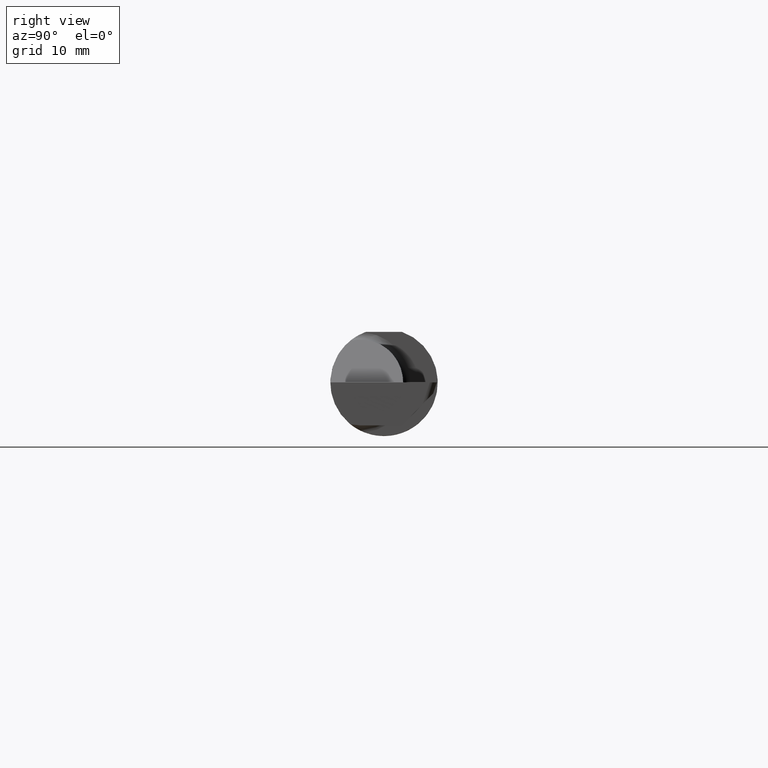
[diagram: clean part render]
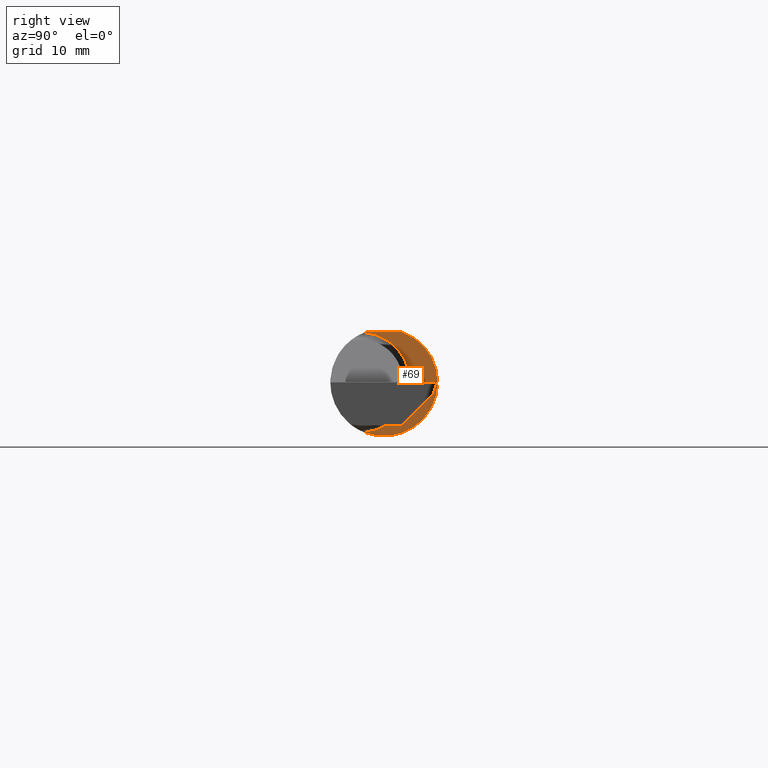
[diagram: same view with one face highlighted and labeled with its STEP entity id]
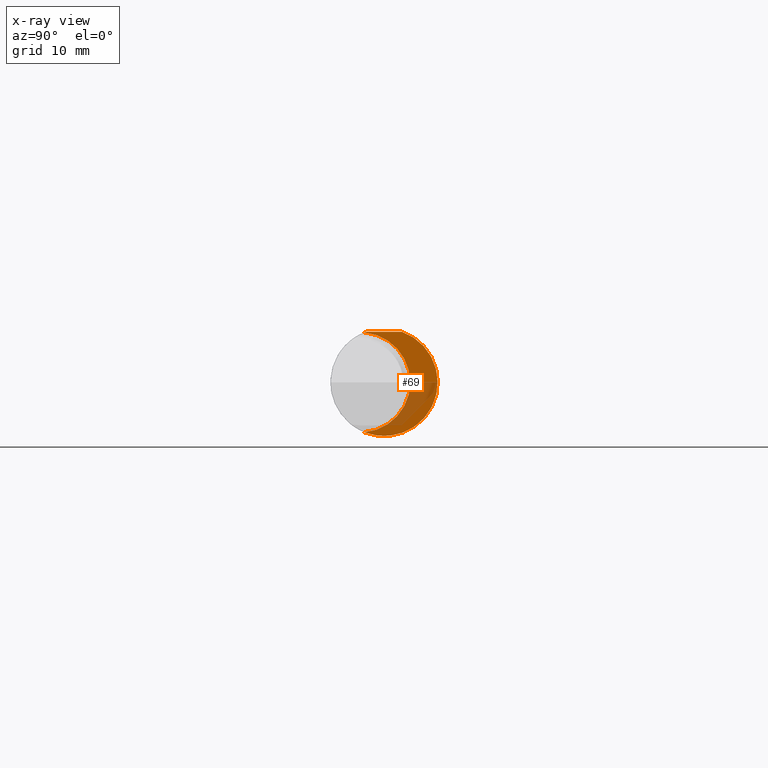
[diagram: x-ray of the same camera — body ghosted, the highlighted face saturated]
A machine part, right view. The second image highlights one B-rep face of the part: STEP entity #69.
The next image is the same camera in x-ray: the body ghosted, the highlighted face saturated — about 28% of this face is hidden behind the body in this view.
In plain terms, the highlighted planar face has unit normal (1, 0, 0).
Its self-contained STEP definition (entity closure, byte-faithful):
#4 = DIRECTION ( 'NONE',  ( 0.000000000000000000, 1.000000000000000000, 0.000000000000000000 ) ) ;
#13 = PLANE ( 'NONE',  #49 ) ;
#15 = CIRCLE ( 'NONE', #602, 0.1873499999999999888 ) ;
#27 = CARTESIAN_POINT ( 'NONE',  ( 1.450000000000000178, 0.000000000000000000, 0.000000000000000000 ) ) ;
#47 = VERTEX_POINT ( 'NONE', #463 ) ;
#49 = AXIS2_PLACEMENT_3D ( 'NONE', #229, #224, #665 ) ;
#69 = ADVANCED_FACE ( 'NONE', ( #686 ), #13, .T. ) ;
#121 = AXIS2_PLACEMENT_3D ( 'NONE', #27, #454, #673 ) ;
#187 = CARTESIAN_POINT ( 'NONE',  ( 1.450000000000000178, -0.08335000000000004905, 0.000000000000000000 ) ) ;
#206 = CARTESIAN_POINT ( 'NONE',  ( 1.450000000000000178, 0.000000000000000000, 0.000000000000000000 ) ) ;
#224 = DIRECTION ( 'NONE',  ( 1.000000000000000000, 5.107097978105302334E-17, 0.000000000000000000 ) ) ;
#229 = CARTESIAN_POINT ( 'NONE',  ( 1.450000000000000178, 0.1873499999999998500, 0.000000000000000000 ) ) ;
#238 = VERTEX_POINT ( 'NONE', #390 ) ;
#262 = AXIS2_PLACEMENT_3D ( 'NONE', #187, #400, #619 ) ;
#279 = LINE ( 'NONE', #295, #650 ) ;
#295 = CARTESIAN_POINT ( 'NONE',  ( 1.450000000000000178, 0.1873499999999997667, 0.1763499999999999235 ) ) ;
#306 = EDGE_CURVE ( 'NONE', #47, #238, #663, .T. ) ;
#310 = EDGE_CURVE ( 'NONE', #419, #480, #279, .T. ) ;
#325 = DIRECTION ( 'NONE',  ( 1.000000000000000000, 5.107097978105302334E-17, 0.000000000000000000 ) ) ;
#366 = ORIENTED_EDGE ( 'NONE', *, *, #310, .F. ) ;
#390 = CARTESIAN_POINT ( 'NONE',  ( 1.450000000000000178, -0.06851976604679066440, -0.1743704796142198643 ) ) ;
#392 = EDGE_CURVE ( 'NONE', #419, #47, #15, .T. ) ;
#400 = DIRECTION ( 'NONE',  ( -1.000000000000000000, -5.107097978105302334E-17, -0.000000000000000000 ) ) ;
#419 = VERTEX_POINT ( 'NONE', #583 ) ;
#420 = CIRCLE ( 'NONE', #121, 0.1873499999999999888 ) ;
#440 = DIRECTION ( 'NONE',  ( -5.107097978105302334E-17, 1.000000000000000000, 0.000000000000000000 ) ) ;
#454 = DIRECTION ( 'NONE',  ( 1.000000000000000000, 5.107097978105302334E-17, 0.000000000000000000 ) ) ;
#462 = ORIENTED_EDGE ( 'NONE', *, *, #625, .T. ) ;
#463 = CARTESIAN_POINT ( 'NONE',  ( 1.450000000000000178, -0.06851976604679066440, 0.1743704796142198643 ) ) ;
#480 = VERTEX_POINT ( 'NONE', #556 ) ;
#525 = EDGE_LOOP ( 'NONE', ( #462, #366, #576, #539 ) ) ;
#539 = ORIENTED_EDGE ( 'NONE', *, *, #306, .T. ) ;
#556 = CARTESIAN_POINT ( 'NONE',  ( 1.450000000000000178, 0.06325108694718235836, 0.1763499999999999235 ) ) ;
#576 = ORIENTED_EDGE ( 'NONE', *, *, #392, .T. ) ;
#583 = CARTESIAN_POINT ( 'NONE',  ( 1.450000000000000178, -0.06325108694718287183, 0.1763499999999999235 ) ) ;
#602 = AXIS2_PLACEMENT_3D ( 'NONE', #206, #325, #4 ) ;
#619 = DIRECTION ( 'NONE',  ( 0.000000000000000000, -1.000000000000000000, 0.000000000000000000 ) ) ;
#625 = EDGE_CURVE ( 'NONE', #238, #480, #420, .T. ) ;
#650 = VECTOR ( 'NONE', #440, 39.37007874015748143 ) ;
#663 = CIRCLE ( 'NONE', #262, 0.1749999999999999889 ) ;
#665 = DIRECTION ( 'NONE',  ( -5.107097978105302334E-17, 1.000000000000000000, 0.000000000000000000 ) ) ;
#673 = DIRECTION ( 'NONE',  ( 0.000000000000000000, 1.000000000000000000, 0.000000000000000000 ) ) ;
#686 = FACE_OUTER_BOUND ( 'NONE', #525, .T. ) ;